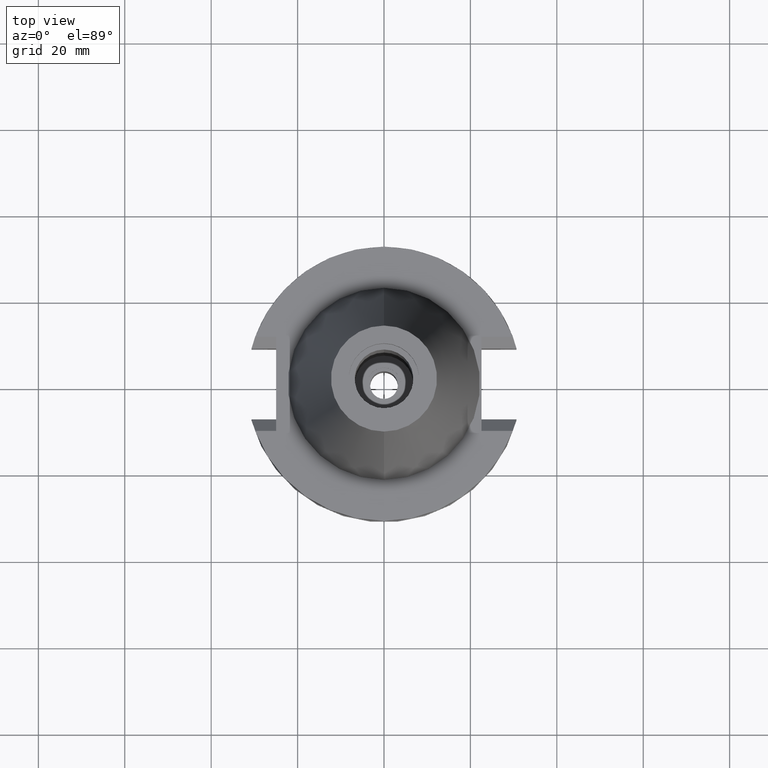
[diagram: clean part render]
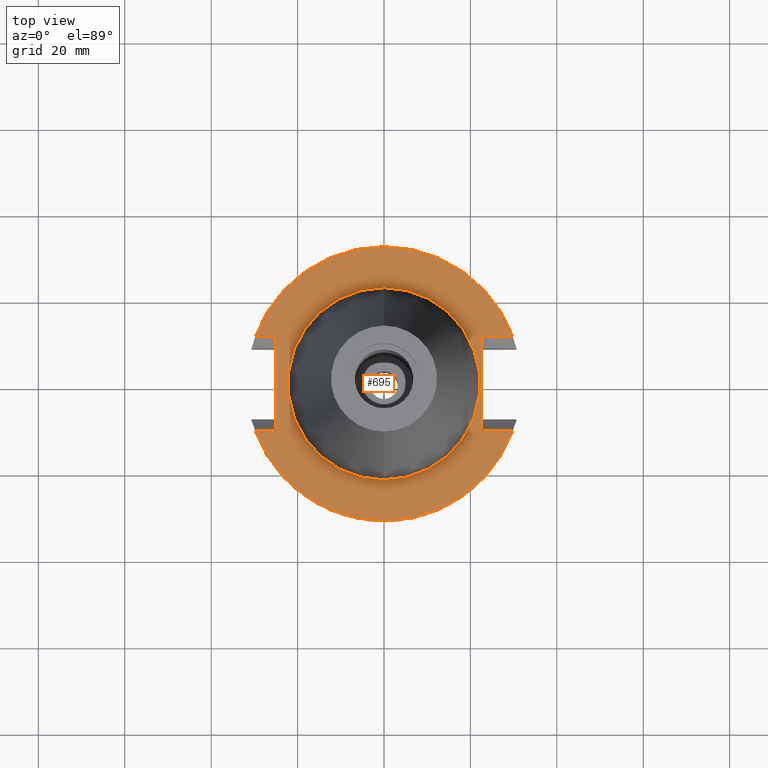
[diagram: same view with one face highlighted and labeled with its STEP entity id]
A machine part, top view. The second image highlights one B-rep face of the part: STEP entity #695.
In plain terms, the highlighted planar face has unit normal (0, 0, -1).
Its self-contained STEP definition (entity closure, byte-faithful):
#3 = EDGE_CURVE ( 'NONE', #1370, #2748, #3163, .T. ) ;
#108 = EDGE_LOOP ( 'NONE', ( #2464, #1239 ) ) ;
#136 = ORIENTED_EDGE ( 'NONE', *, *, #2406, .F. ) ;
#170 = EDGE_LOOP ( 'NONE', ( #1339, #1510, #575, #3315, #687, #136, #3228, #2609 ) ) ;
#205 = EDGE_CURVE ( 'NONE', #1096, #763, #2334, .T. ) ;
#231 = CARTESIAN_POINT ( 'NONE',  ( 0.0000000000000000000, 1.212400331155999925E-14, -1.000000000000000000 ) ) ;
#266 = CIRCLE ( 'NONE', #1083, 22.22500000000000142 ) ;
#310 = DIRECTION ( 'NONE',  ( 0.0000000000000000000, -1.000000000000000000, 0.0000000000000000000 ) ) ;
#362 = EDGE_CURVE ( 'NONE', #2984, #763, #751, .T. ) ;
#376 = VECTOR ( 'NONE', #2675, 1000.000000000000000 ) ;
#388 = CARTESIAN_POINT ( 'NONE',  ( 22.57000000000000028, 10.89000000000000057, -1.000000000000000000 ) ) ;
#398 = EDGE_CURVE ( 'NONE', #2361, #3038, #266, .T. ) ;
#401 = DIRECTION ( 'NONE',  ( 0.0000000000000000000, 0.0000000000000000000, 1.000000000000000000 ) ) ;
#404 = CARTESIAN_POINT ( 'NONE',  ( -29.82399034335000110, -10.89000000000000057, -1.000000000001000089 ) ) ;
#408 = DIRECTION ( 'NONE',  ( 0.0000000000000000000, -1.000000000000000000, 0.0000000000000000000 ) ) ;
#418 = CARTESIAN_POINT ( 'NONE',  ( 0.0000000000000000000, 2.145121949555999817E-14, -0.9999999999999000799 ) ) ;
#437 = LINE ( 'NONE', #1458, #2969 ) ;
#461 = DIRECTION ( 'NONE',  ( 1.000000000000000000, -5.779166972325999752E-14, 0.0000000000000000000 ) ) ;
#472 = CIRCLE ( 'NONE', #1331, 31.75000000000000000 ) ;
#518 = VERTEX_POINT ( 'NONE', #3272 ) ;
#525 = CARTESIAN_POINT ( 'NONE',  ( 22.57000000000000028, 10.89000000000000057, -1.000000000000000000 ) ) ;
#533 = VERTEX_POINT ( 'NONE', #2216 ) ;
#575 = ORIENTED_EDGE ( 'NONE', *, *, #3011, .F. ) ;
#601 = LINE ( 'NONE', #388, #3235 ) ;
#614 = LINE ( 'NONE', #1587, #641 ) ;
#641 = VECTOR ( 'NONE', #310, 1000.000000000000000 ) ;
#658 = CARTESIAN_POINT ( 'NONE',  ( 0.0000000000000000000, 2.145121949555999817E-14, -1.000000000000000000 ) ) ;
#687 = ORIENTED_EDGE ( 'NONE', *, *, #3, .T. ) ;
#695 = ADVANCED_FACE ( 'NONE', ( #1520, #1732 ), #2563, .F. ) ;
#751 = CIRCLE ( 'NONE', #2668, 31.75000000000000000 ) ;
#763 = VERTEX_POINT ( 'NONE', #1022 ) ;
#801 = DIRECTION ( 'NONE',  ( 0.0000000000000000000, 1.000000000000000000, 0.0000000000000000000 ) ) ;
#831 = CARTESIAN_POINT ( 'NONE',  ( 22.57000000000000028, 10.89000000000000057, -1.000000000000000000 ) ) ;
#842 = VERTEX_POINT ( 'NONE', #1128 ) ;
#925 = DIRECTION ( 'NONE',  ( 0.0000000000000000000, -1.000000000000000000, 0.0000000000000000000 ) ) ;
#960 = DIRECTION ( 'NONE',  ( 0.0000000000000000000, -1.000000000000000000, 0.0000000000000000000 ) ) ;
#963 = CARTESIAN_POINT ( 'NONE',  ( 0.0000000000000000000, 22.22500000000000142, -0.9999999999999000799 ) ) ;
#1012 = DIRECTION ( 'NONE',  ( 0.0000000000000000000, 0.0000000000000000000, -1.000000000000000000 ) ) ;
#1022 = CARTESIAN_POINT ( 'NONE',  ( 29.82399034335000110, 10.89000000000000057, -1.000000000001000089 ) ) ;
#1083 = AXIS2_PLACEMENT_3D ( 'NONE', #418, #401, #925 ) ;
#1096 = VERTEX_POINT ( 'NONE', #525 ) ;
#1128 = CARTESIAN_POINT ( 'NONE',  ( 29.82399034335000110, -10.89000000000000057, -1.000000000001000089 ) ) ;
#1186 = CARTESIAN_POINT ( 'NONE',  ( 0.0000000000000000000, -22.22500000000000142, -0.9999999999999000799 ) ) ;
#1202 = EDGE_CURVE ( 'NONE', #533, #1370, #614, .T. ) ;
#1239 = ORIENTED_EDGE ( 'NONE', *, *, #398, .F. ) ;
#1331 = AXIS2_PLACEMENT_3D ( 'NONE', #658, #1683, #408 ) ;
#1339 = ORIENTED_EDGE ( 'NONE', *, *, #205, .T. ) ;
#1370 = VERTEX_POINT ( 'NONE', #2635 ) ;
#1383 = EDGE_CURVE ( 'NONE', #518, #842, #2124, .T. ) ;
#1393 = CARTESIAN_POINT ( 'NONE',  ( -24.98000000000000043, -10.89000000000000057, -1.000000000000000000 ) ) ;
#1458 = CARTESIAN_POINT ( 'NONE',  ( -24.98000000000000043, 10.89000000000000057, -1.000000000000000000 ) ) ;
#1498 = CARTESIAN_POINT ( 'NONE',  ( 0.0000000000000000000, 2.145121949555999817E-14, -1.000000000000000000 ) ) ;
#1510 = ORIENTED_EDGE ( 'NONE', *, *, #362, .F. ) ;
#1520 = FACE_OUTER_BOUND ( 'NONE', #170, .T. ) ;
#1587 = CARTESIAN_POINT ( 'NONE',  ( -24.98000000000000043, 10.89000000000000057, -1.000000000000000000 ) ) ;
#1614 = EDGE_CURVE ( 'NONE', #3038, #2361, #2371, .T. ) ;
#1683 = DIRECTION ( 'NONE',  ( 0.0000000000000000000, 0.0000000000000000000, -1.000000000000000000 ) ) ;
#1717 = DIRECTION ( 'NONE',  ( 0.0000000000000000000, 0.0000000000000000000, -1.000000000000000000 ) ) ;
#1732 = FACE_BOUND ( 'NONE', #108, .T. ) ;
#1836 = DIRECTION ( 'NONE',  ( 0.0000000000000000000, 0.0000000000000000000, 1.000000000000000000 ) ) ;
#1930 = VECTOR ( 'NONE', #461, 1000.000000000000000 ) ;
#2000 = CARTESIAN_POINT ( 'NONE',  ( -29.82399034335000110, 10.89000000000000057, -1.000000000000000000 ) ) ;
#2014 = AXIS2_PLACEMENT_3D ( 'NONE', #231, #1717, #960 ) ;
#2050 = DIRECTION ( 'NONE',  ( 0.0000000000000000000, 1.000000000000000000, 0.0000000000000000000 ) ) ;
#2124 = LINE ( 'NONE', #2656, #376 ) ;
#2174 = DIRECTION ( 'NONE',  ( -1.000000000000000000, 8.727782216946000332E-14, 0.0000000000000000000 ) ) ;
#2216 = CARTESIAN_POINT ( 'NONE',  ( -24.98000000000000043, 10.89000000000000057, -1.000000000000000000 ) ) ;
#2258 = VECTOR ( 'NONE', #2174, 1000.000000000000000 ) ;
#2278 = DIRECTION ( 'NONE',  ( -1.000000000000000000, -8.727782216946000332E-14, 0.0000000000000000000 ) ) ;
#2334 = LINE ( 'NONE', #831, #1930 ) ;
#2361 = VERTEX_POINT ( 'NONE', #1186 ) ;
#2371 = CIRCLE ( 'NONE', #3026, 22.22500000000000142 ) ;
#2406 = EDGE_CURVE ( 'NONE', #842, #2748, #472, .T. ) ;
#2432 = DIRECTION ( 'NONE',  ( 0.0000000000000000000, -1.000000000000000000, 0.0000000000000000000 ) ) ;
#2464 = ORIENTED_EDGE ( 'NONE', *, *, #1614, .F. ) ;
#2563 = PLANE ( 'NONE',  #2014 ) ;
#2609 = ORIENTED_EDGE ( 'NONE', *, *, #3321, .F. ) ;
#2635 = CARTESIAN_POINT ( 'NONE',  ( -24.98000000000000043, -10.89000000000000057, -1.000000000000000000 ) ) ;
#2656 = CARTESIAN_POINT ( 'NONE',  ( 22.57000000000000028, -10.89000000000000057, -1.000000000000000000 ) ) ;
#2668 = AXIS2_PLACEMENT_3D ( 'NONE', #1498, #1012, #2050 ) ;
#2675 = DIRECTION ( 'NONE',  ( 1.000000000000000000, 5.877118954907999932E-14, 0.0000000000000000000 ) ) ;
#2748 = VERTEX_POINT ( 'NONE', #404 ) ;
#2969 = VECTOR ( 'NONE', #2278, 1000.000000000000000 ) ;
#2984 = VERTEX_POINT ( 'NONE', #2000 ) ;
#3011 = EDGE_CURVE ( 'NONE', #533, #2984, #437, .T. ) ;
#3026 = AXIS2_PLACEMENT_3D ( 'NONE', #3130, #1836, #801 ) ;
#3038 = VERTEX_POINT ( 'NONE', #963 ) ;
#3130 = CARTESIAN_POINT ( 'NONE',  ( 0.0000000000000000000, 2.145121949555999817E-14, -0.9999999999999000799 ) ) ;
#3163 = LINE ( 'NONE', #1393, #2258 ) ;
#3228 = ORIENTED_EDGE ( 'NONE', *, *, #1383, .F. ) ;
#3235 = VECTOR ( 'NONE', #2432, 1000.000000000000000 ) ;
#3272 = CARTESIAN_POINT ( 'NONE',  ( 22.57000000000000028, -10.89000000000000057, -1.000000000000000000 ) ) ;
#3315 = ORIENTED_EDGE ( 'NONE', *, *, #1202, .T. ) ;
#3321 = EDGE_CURVE ( 'NONE', #1096, #518, #601, .T. ) ;